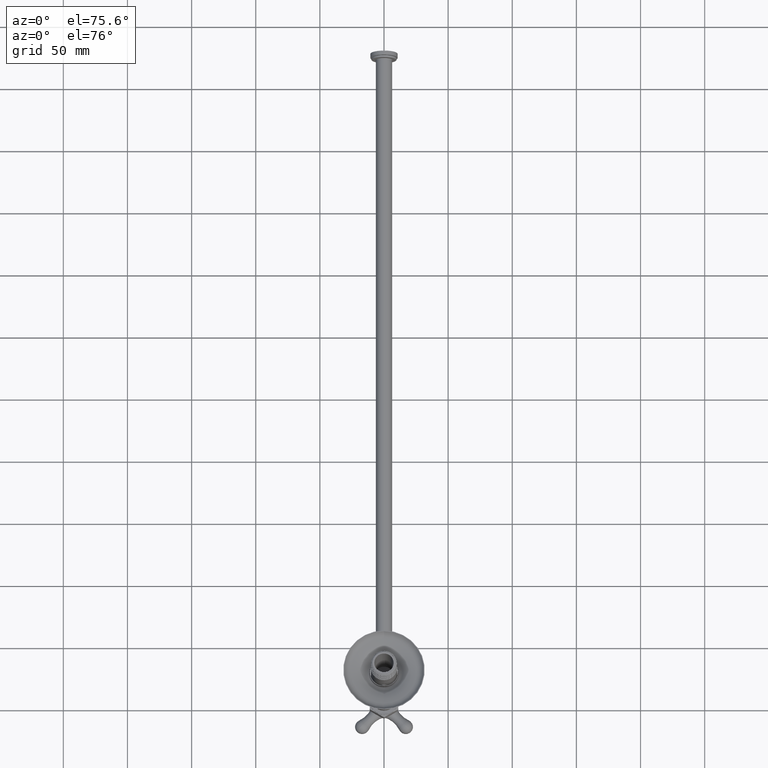
[diagram: clean part render]
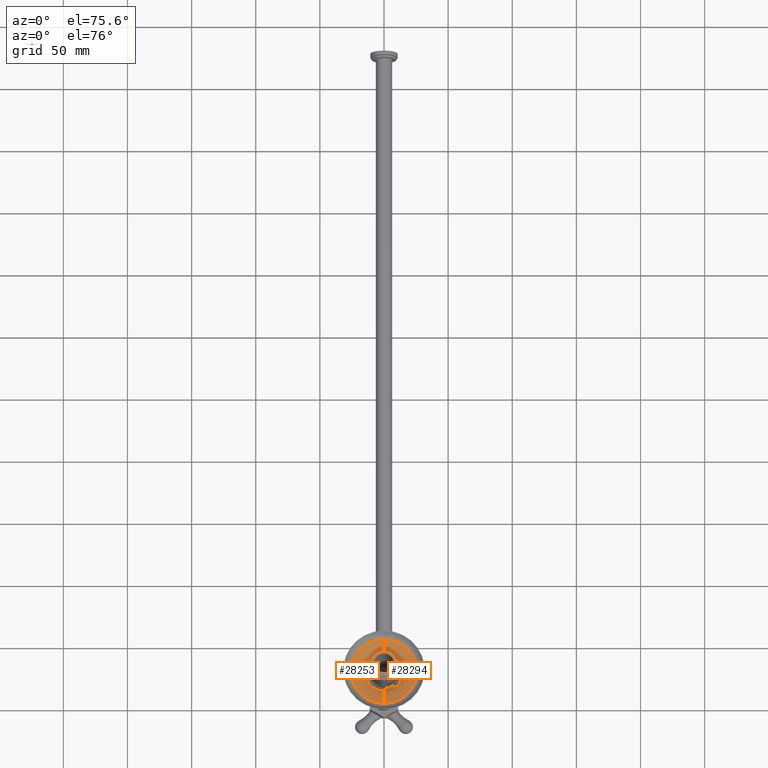
[diagram: same view with one multi-face feature highlighted, each face labeled with its STEP entity id]
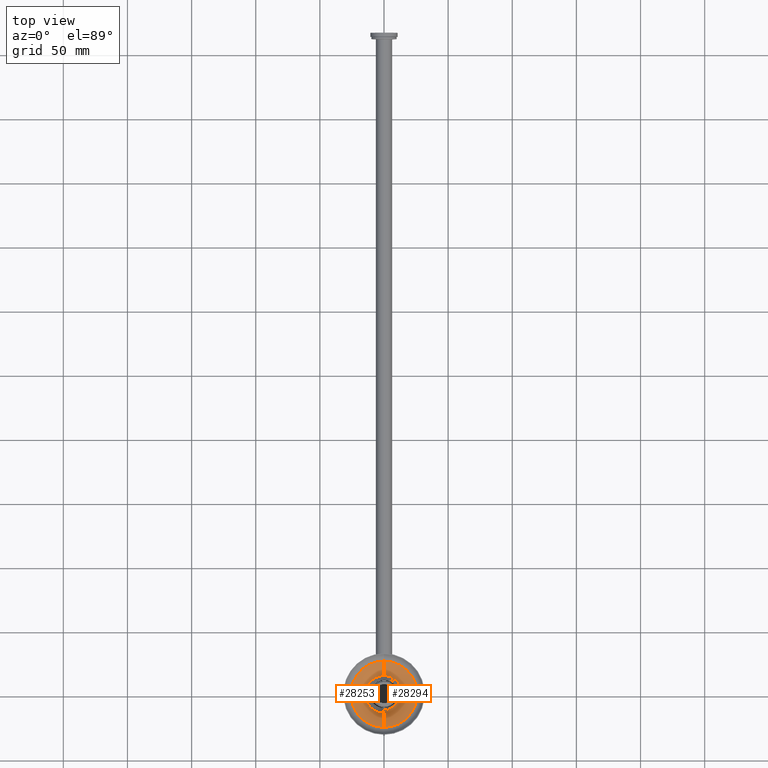
[diagram: same view with one multi-face feature highlighted, each face labeled with its STEP entity id]
A machine part, auxiliary view. The highlighted faces form ONE feature: a constant-radius fillet chain: 2 tangent blend faces with common blend radius 30.988 mm. The faces share edges in the B-rep.
A second angle (top view) of the same feature is appended — it is thin or edge-on in the first view.
Their STEP definitions:
[1] entity #28294 (Torus):
#27371=CARTESIAN_POINT('',(0.E0,0.E0,2.892775535378E0));
#27372=DIRECTION('',(0.E0,0.E0,1.E0));
#27373=DIRECTION('',(-2.059349286905E-13,-1.E0,0.E0));
#27374=AXIS2_PLACEMENT_3D('',#27371,#27372,#27373);
#27376=CARTESIAN_POINT('',(0.E0,1.265329988284E0,1.886515175075E0));
#27377=DIRECTION('',(-1.E0,0.E0,0.E0));
#27378=DIRECTION('',(0.E0,-5.654193702781E-1,8.248035740189E-1));
#27379=AXIS2_PLACEMENT_3D('',#27376,#27377,#27378);
#27381=CARTESIAN_POINT('',(0.E0,0.E0,3.081052583293E0));
#27382=DIRECTION('',(0.E0,0.E0,-1.E0));
#27383=DIRECTION('',(0.E0,1.E0,0.E0));
#27384=AXIS2_PLACEMENT_3D('',#27381,#27382,#27383);
#27386=CARTESIAN_POINT('',(-2.605756409072E-13,-1.265329988284E0,
1.886515175075E0));
#27387=DIRECTION('',(-1.E0,2.059349286905E-13,0.E0));
#27388=DIRECTION('',(4.185414320143E-14,2.032396518044E-1,9.791290231294E-1));
#27389=AXIS2_PLACEMENT_3D('',#27386,#27387,#27388);
#27448=CARTESIAN_POINT('',(0.E0,1.017377613082E0,3.081052583292E0));
#27449=VERTEX_POINT('',#27448);
#27450=CARTESIAN_POINT('',(-2.090617797812E-13,-1.017377613083E0,
3.081052583293E0));
#27451=VERTEX_POINT('',#27450);
#27452=CARTESIAN_POINT('',(2.217731207010E-12,5.755183565446E-1,
2.892775535378E0));
#27453=CARTESIAN_POINT('',(2.148296943777E-12,-5.755183565446E-1,
2.892775535378E0));
#27454=VERTEX_POINT('',#27452);
#27455=VERTEX_POINT('',#27453);
#28283=CARTESIAN_POINT('',(0.E0,0.E0,1.886515175075E0));
#28284=DIRECTION('',(0.E0,0.E0,1.E0));
#28285=DIRECTION('',(0.E0,1.E0,0.E0));
#28286=AXIS2_PLACEMENT_3D('',#28283,#28284,#28285);
#28287=TOROIDAL_SURFACE('',#28286,1.265329988284E0,1.22E0);
#28288=ORIENTED_EDGE('',*,*,#28274,.T.);
#28289=ORIENTED_EDGE('',*,*,#28249,.T.);
#28290=ORIENTED_EDGE('',*,*,#28221,.T.);
#28291=ORIENTED_EDGE('',*,*,#28246,.T.);
#28292=EDGE_LOOP('',(#28288,#28289,#28290,#28291));
#28293=FACE_OUTER_BOUND('',#28292,.F.);
#28294=ADVANCED_FACE('',(#28293),#28287,.T.);
#27375=CIRCLE('',#27374,5.755183565447E-1);
#27380=CIRCLE('',#27379,1.22E0);
#27385=CIRCLE('',#27384,1.017377613083E0);
#27390=CIRCLE('',#27389,1.22E0);
#28221=EDGE_CURVE('',#27449,#27451,#27385,.T.);
#28246=EDGE_CURVE('',#27451,#27455,#27390,.T.);
#28249=EDGE_CURVE('',#27454,#27449,#27380,.T.);
#28274=EDGE_CURVE('',#27455,#27454,#27375,.T.);
[2] entity #28253 (Torus):
#27351=CARTESIAN_POINT('',(0.E0,0.E0,3.081052583293E0));
#27352=DIRECTION('',(0.E0,0.E0,-1.E0));
#27353=DIRECTION('',(2.063790179004E-13,-1.E0,0.E0));
#27354=AXIS2_PLACEMENT_3D('',#27351,#27352,#27353);
#27356=CARTESIAN_POINT('',(0.E0,0.E0,2.892775535378E0));
#27357=DIRECTION('',(0.E0,0.E0,1.E0));
#27358=DIRECTION('',(3.853449993021E-12,1.E0,0.E0));
#27359=AXIS2_PLACEMENT_3D('',#27356,#27357,#27358);
#27376=CARTESIAN_POINT('',(0.E0,1.265329988284E0,1.886515175075E0));
#27377=DIRECTION('',(-1.E0,0.E0,0.E0));
#27378=DIRECTION('',(0.E0,-5.654193702781E-1,8.248035740189E-1));
#27379=AXIS2_PLACEMENT_3D('',#27376,#27377,#27378);
#27386=CARTESIAN_POINT('',(-2.605756409072E-13,-1.265329988284E0,
1.886515175075E0));
#27387=DIRECTION('',(-1.E0,2.059349286905E-13,0.E0));
#27388=DIRECTION('',(4.185414320143E-14,2.032396518044E-1,9.791290231294E-1));
#27389=AXIS2_PLACEMENT_3D('',#27386,#27387,#27388);
#27448=CARTESIAN_POINT('',(0.E0,1.017377613082E0,3.081052583292E0));
#27449=VERTEX_POINT('',#27448);
#27450=CARTESIAN_POINT('',(-2.090617797812E-13,-1.017377613083E0,
3.081052583293E0));
#27451=VERTEX_POINT('',#27450);
#27452=CARTESIAN_POINT('',(2.217731207010E-12,5.755183565446E-1,
2.892775535378E0));
#27453=CARTESIAN_POINT('',(2.148296943777E-12,-5.755183565446E-1,
2.892775535378E0));
#27454=VERTEX_POINT('',#27452);
#27455=VERTEX_POINT('',#27453);
#28239=CARTESIAN_POINT('',(0.E0,0.E0,1.886515175075E0));
#28240=DIRECTION('',(0.E0,0.E0,1.E0));
#28241=DIRECTION('',(0.E0,1.E0,0.E0));
#28242=AXIS2_PLACEMENT_3D('',#28239,#28240,#28241);
#28243=TOROIDAL_SURFACE('',#28242,1.265329988284E0,1.22E0);
#28245=ORIENTED_EDGE('',*,*,#28244,.T.);
#28247=ORIENTED_EDGE('',*,*,#28246,.F.);
#28248=ORIENTED_EDGE('',*,*,#28232,.T.);
#28250=ORIENTED_EDGE('',*,*,#28249,.F.);
#28251=EDGE_LOOP('',(#28245,#28247,#28248,#28250));
#28252=FACE_OUTER_BOUND('',#28251,.F.);
#28253=ADVANCED_FACE('',(#28252),#28243,.T.);
#27355=CIRCLE('',#27354,1.017377613083E0);
#27360=CIRCLE('',#27359,5.755183565446E-1);
#27380=CIRCLE('',#27379,1.22E0);
#27390=CIRCLE('',#27389,1.22E0);
#28232=EDGE_CURVE('',#27451,#27449,#27355,.T.);
#28244=EDGE_CURVE('',#27454,#27455,#27360,.T.);
#28246=EDGE_CURVE('',#27451,#27455,#27390,.T.);
#28249=EDGE_CURVE('',#27454,#27449,#27380,.T.);